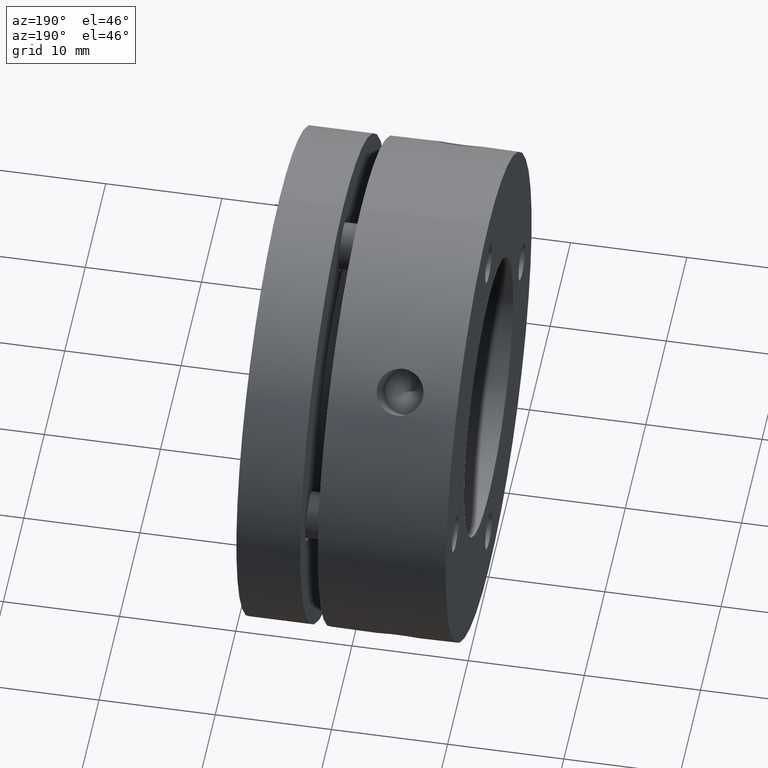
[diagram: clean part render]
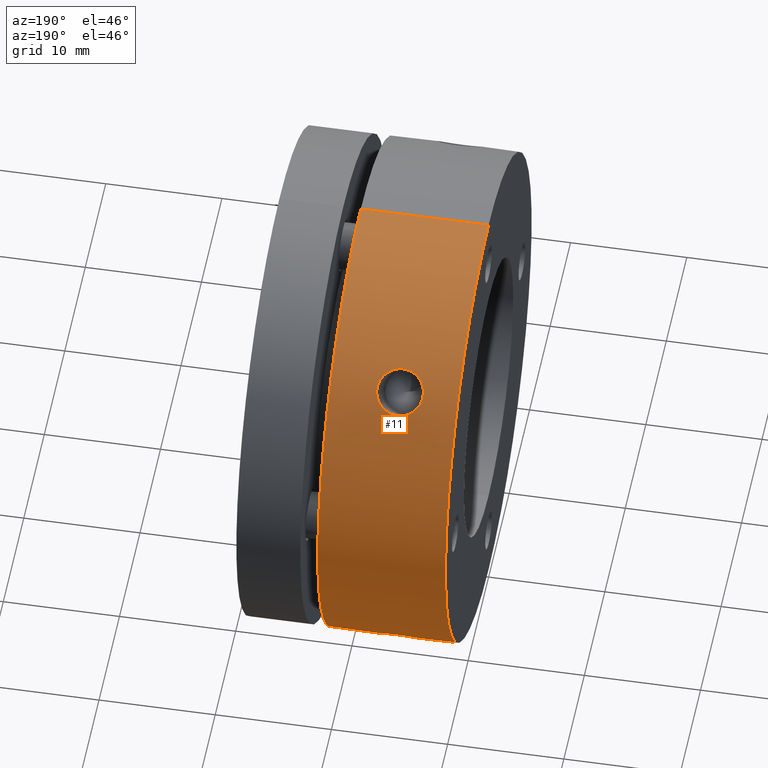
[diagram: same view with one face highlighted and labeled with its STEP entity id]
A machine part, auxiliary view. The second image highlights one B-rep face of the part: STEP entity #11.
In plain terms, the highlighted cylindrical surface (partial cylindrical patch) has radius 21 mm, axis along (1, 0, 0).
Its self-contained STEP definition (entity closure, byte-faithful):
#11 = ADVANCED_FACE ( 'NONE', ( #2265, #2268, #2271 ), #2275, .T. ) ;
#189 = LINE ( 'NONE', #3384, #190 ) ;
#190 = VECTOR ( 'NONE', #3383, 1000.000000000000000 ) ;
#217 = CIRCLE ( 'NONE', #1011, 20.99999999999999600 ) ;
#448 = AXIS2_PLACEMENT_3D ( 'NONE', #1272, #1223, #1276 ) ;
#529 = EDGE_LOOP ( 'NONE', ( #1470, #1476 ) ) ;
#535 = EDGE_LOOP ( 'NONE', ( #1589, #1568 ) ) ;
#574 = EDGE_LOOP ( 'NONE', ( #1612, #1520, #1575, #1566 ) ) ;
#914 = AXIS2_PLACEMENT_3D ( 'NONE', #2402, #2401, #2400 ) ;
#1011 = AXIS2_PLACEMENT_3D ( 'NONE', #3222, #3221, #3219 ) ;
#1093 = EDGE_CURVE ( 'NONE', #3028, #3022, #2710, .T. ) ;
#1094 = EDGE_CURVE ( 'NONE', #3028, #3007, #2708, .T. ) ;
#1095 = EDGE_CURVE ( 'NONE', #3015, #3006, #3527, .T. ) ;
#1096 = EDGE_CURVE ( 'NONE', #3001, #3032, #2479, .T. ) ;
#1223 = DIRECTION ( 'NONE',  ( 1.000000000000000000, 0.0000000000000000000, 0.0000000000000000000 ) ) ;
#1272 = CARTESIAN_POINT ( 'NONE',  ( 8.999999999999994700, 0.0000000000000000000, 0.0000000000000000000 ) ) ;
#1276 = DIRECTION ( 'NONE',  ( 0.0000000000000000000, 0.0000000000000000000, -1.000000000000000000 ) ) ;
#1470 = ORIENTED_EDGE ( 'NONE', *, *, #2986, .T. ) ;
#1476 = ORIENTED_EDGE ( 'NONE', *, *, #1095, .T. ) ;
#1520 = ORIENTED_EDGE ( 'NONE', *, *, #1969, .T. ) ;
#1566 = ORIENTED_EDGE ( 'NONE', *, *, #1093, .F. ) ;
#1568 = ORIENTED_EDGE ( 'NONE', *, *, #1964, .T. ) ;
#1575 = ORIENTED_EDGE ( 'NONE', *, *, #2987, .T. ) ;
#1589 = ORIENTED_EDGE ( 'NONE', *, *, #1096, .T. ) ;
#1612 = ORIENTED_EDGE ( 'NONE', *, *, #1094, .T. ) ;
#1871 = CARTESIAN_POINT ( 'NONE',  ( 6.005600143204897100, 16.03410691909888200, -13.56161555720591800 ) ) ;
#1872 = CARTESIAN_POINT ( 'NONE',  ( 3.013076156280496400, 14.66231486653603800, 15.03439262824929300 ) ) ;
#1874 = CARTESIAN_POINT ( 'NONE',  ( 3.013162436840886900, 15.03471700140199000, 14.66197906076251200 ) ) ;
#1875 = CARTESIAN_POINT ( 'NONE',  ( 4.113598743811387200, 13.52366510625741600, 16.06589607870441900 ) ) ;
#1876 = CARTESIAN_POINT ( 'NONE',  ( 6.986924496141181600, 14.66231830864906100, -15.03438927386135200 ) ) ;
#1877 = CARTESIAN_POINT ( 'NONE',  ( 6.589917304923512000, 15.68726099736142000, -13.96143524922093900 ) ) ;
#1878 = CARTESIAN_POINT ( 'NONE',  ( 6.935819717590558900, 15.21212407823497000, -14.47783223591921100 ) ) ;
#1879 = CARTESIAN_POINT ( 'NONE',  ( 3.064179134651903600, 15.21212116468766600, 14.47783529956555000 ) ) ;
#1880 = CARTESIAN_POINT ( 'NONE',  ( 3.064225063465916100, 14.47764516184384400, 15.21230520051250300 ) ) ;
#1881 = CARTESIAN_POINT ( 'NONE',  ( 4.736935662604039100, 13.37766463435834800, 16.18761098435290100 ) ) ;
#1882 = CARTESIAN_POINT ( 'NONE',  ( 6.986836918605400000, 15.03472032035416800, -14.66197565513485300 ) ) ;
#1886 = CARTESIAN_POINT ( 'NONE',  ( 6.999904746440447100, 14.94371491292546700, -14.75475706749604000 ) ) ;
#1887 = CARTESIAN_POINT ( 'NONE',  ( 6.735184434082400500, 15.54179043518068900, -14.12319304854436200 ) ) ;
#1888 = CARTESIAN_POINT ( 'NONE',  ( 4.999999999999995600, 16.19595906146757300, -13.36753193672138600 ) ) ;
#1890 = CARTESIAN_POINT ( 'NONE',  ( 4.355766056585326700, 13.44647644156576400, 16.13055504390197500 ) ) ;
#1891 = CARTESIAN_POINT ( 'NONE',  ( 4.869496860463496700, 13.36753193672138800, 16.19595906146757300 ) ) ;
#1896 = CARTESIAN_POINT ( 'NONE',  ( 5.261006279270014300, 16.19595906146758300, -13.36753193672139200 ) ) ;
#1898 = CARTESIAN_POINT ( 'NONE',  ( 5.524290909463321200, 16.16254283425133700, -13.40828886717223300 ) ) ;
#1899 = CARTESIAN_POINT ( 'NONE',  ( 6.796687258579057200, 15.46432699223289700, -14.20807017327674900 ) ) ;
#1900 = CARTESIAN_POINT ( 'NONE',  ( 4.738993284082493300, 16.19595906146758300, 13.36753193672138100 ) ) ;
#1901 = CARTESIAN_POINT ( 'NONE',  ( 6.505436171368358200, 15.75547316399062600, -13.88429291158902900 ) ) ;
#1902 = CARTESIAN_POINT ( 'NONE',  ( 4.480440816003436100, 13.41724441413780700, 16.15482010984314000 ) ) ;
#1903 = CARTESIAN_POINT ( 'NONE',  ( 3.102754687375309600, 15.29942260343310200, 14.38549044880101500 ) ) ;
#1904 = CARTESIAN_POINT ( 'NONE',  ( 3.679102153134181200, 13.74509068351628300, 15.87706641633236300 ) ) ;
#1907 = CARTESIAN_POINT ( 'NONE',  ( 3.102038272335075700, 14.38702237064529400, 15.29798268426135300 ) ) ;
#1908 = CARTESIAN_POINT ( 'NONE',  ( 3.494561936237607000, 15.75547175332747300, 13.88429451423871600 ) ) ;
#1909 = CARTESIAN_POINT ( 'NONE',  ( 3.492391630515911900, 13.88603379920389000, 15.75394621084133500 ) ) ;
#1910 = CARTESIAN_POINT ( 'NONE',  ( 3.264963416001619700, 14.12304419929171400, 15.54192321312433800 ) ) ;
#1911 = CARTESIAN_POINT ( 'NONE',  ( 6.228682739156715400, 15.93768389421788200, -13.67568386561014100 ) ) ;
#1914 = CARTESIAN_POINT ( 'NONE',  ( 3.996623524210593600, 13.57173985438823200, 16.02539085105004100 ) ) ;
#1915 = CARTESIAN_POINT ( 'NONE',  ( 6.897243942012831800, 15.29942532519429900, -14.38548755135753500 ) ) ;
#1916 = CARTESIAN_POINT ( 'NONE',  ( 3.000094899217838700, 14.94371138295777300, 14.75476064518892500 ) ) ;
#1917 = CARTESIAN_POINT ( 'NONE',  ( 3.264813809755703100, 15.54178840846869700, 14.12319528102776700 ) ) ;
#1918 = CARTESIAN_POINT ( 'NONE',  ( 3.409726555438127500, 13.96181605567385600, 15.68691961620661800 ) ) ;
#1920 = CARTESIAN_POINT ( 'NONE',  ( 4.999999999999995600, 13.36753193672139000, 16.19595906146756900 ) ) ;
#1921 = CARTESIAN_POINT ( 'NONE',  ( 3.771315489736668100, 15.93768305761307100, 13.67568484819504700 ) ) ;
#1923 = CARTESIAN_POINT ( 'NONE',  ( 3.994398311799901800, 16.03410638635383000, 13.56161618947426600 ) ) ;
#1925 = CARTESIAN_POINT ( 'NONE',  ( 4.475708219929767800, 16.16254272239968900, 13.40828900442290800 ) ) ;
#1930 = CARTESIAN_POINT ( 'NONE',  ( 4.999999999999995600, 16.19595906146758000, 13.36753193672138100 ) ) ;
#1931 = CARTESIAN_POINT ( 'NONE',  ( 3.780064835755626800, 13.68225841137524600, 15.93113553292607800 ) ) ;
#1933 = CARTESIAN_POINT ( 'NONE',  ( 3.410080805898212800, 15.68725937362157700, 13.96143707590228000 ) ) ;
#1935 = CARTESIAN_POINT ( 'NONE',  ( 3.202351140710812900, 14.20950283273895200, 15.46301122510722200 ) ) ;
#1936 = CARTESIAN_POINT ( 'NONE',  ( 7.000094226100891600, 14.75679710029061000, -14.94170040057255900 ) ) ;
#1937 = CARTESIAN_POINT ( 'NONE',  ( 3.203311083986759600, 15.46432474832443500, 14.20807261838653400 ) ) ;
#1938 = CARTESIAN_POINT ( 'NONE',  ( 2.999906120647179100, 14.75679312540696800, 14.94170432875377200 ) ) ;
#1964 = EDGE_CURVE ( 'NONE', #3032, #3001, #3518, .T. ) ;
#1969 = EDGE_CURVE ( 'NONE', #3007, #3029, #189, .T. ) ;
#2265 = FACE_BOUND ( 'NONE', #535, .T. ) ;
#2268 = FACE_BOUND ( 'NONE', #529, .T. ) ;
#2271 = FACE_OUTER_BOUND ( 'NONE', #574, .T. ) ;
#2275 = CYLINDRICAL_SURFACE ( 'NONE', #448, 20.99999999999999600 ) ;
#2382 = CARTESIAN_POINT ( 'NONE',  ( 6.935776082672465900, 14.47764821334974900, -15.21230229888407800 ) ) ;
#2383 = CARTESIAN_POINT ( 'NONE',  ( 6.897963072945525000, 14.38702523242153400, -15.29797999506994600 ) ) ;
#2384 = CARTESIAN_POINT ( 'NONE',  ( 6.797650537437917300, 14.20950532141517500, -15.46300894032489900 ) ) ;
#2385 = CARTESIAN_POINT ( 'NONE',  ( 6.735038349482926500, 14.12304644098453600, -15.54192117820698200 ) ) ;
#2386 = CARTESIAN_POINT ( 'NONE',  ( 6.590275315048937300, 13.96181786350604500, -15.68691800928684700 ) ) ;
#2388 = CARTESIAN_POINT ( 'NONE',  ( 6.507610298702568100, 13.88603543654059400, -15.75394476942905800 ) ) ;
#2389 = CARTESIAN_POINT ( 'NONE',  ( 6.320899669290756000, 13.74509187820524000, -15.87706538384152400 ) ) ;
#2391 = CARTESIAN_POINT ( 'NONE',  ( 6.219936903085043800, 13.68225941346796200, -15.93113467332037700 ) ) ;
#2392 = CARTESIAN_POINT ( 'NONE',  ( 6.003378000494636900, 13.57174051781518500, -16.02539029022372600 ) ) ;
#2394 = CARTESIAN_POINT ( 'NONE',  ( 5.886402651143085600, 13.52366562189674300, -16.06589564518466400 ) ) ;
#2395 = CARTESIAN_POINT ( 'NONE',  ( 5.644234981439873300, 13.44647670141763700, -16.13055482781259500 ) ) ;
#2398 = CARTESIAN_POINT ( 'NONE',  ( 5.519560030891916800, 13.41724457858807400, -16.15481997339498200 ) ) ;
#2399 = CARTESIAN_POINT ( 'NONE',  ( 4.999999999999995600, 13.36753193672138300, -16.19595906146757600 ) ) ;
#2400 = DIRECTION ( 'NONE',  ( 0.0000000000000000000, 0.0000000000000000000, -1.000000000000000000 ) ) ;
#2401 = DIRECTION ( 'NONE',  ( 1.000000000000000000, 0.0000000000000000000, 0.0000000000000000000 ) ) ;
#2402 = CARTESIAN_POINT ( 'NONE',  ( -5.204170427930421300E-015, 0.0000000000000000000, 0.0000000000000000000 ) ) ;
#2403 = CARTESIAN_POINT ( 'NONE',  ( 5.263064778962641000, 13.37766466873112100, -16.18761095608106300 ) ) ;
#2405 = CARTESIAN_POINT ( 'NONE',  ( 5.130503358057259400, 13.36753193672139000, -16.19595906146758000 ) ) ;
#2413 = DIRECTION ( 'NONE',  ( 1.000000000000000000, 0.0000000000000000000, 0.0000000000000000000 ) ) ;
#2414 = CARTESIAN_POINT ( 'NONE',  ( 8.999999999999994700, 0.0000000000000000000, -20.99999999999999600 ) ) ;
#2479 = B_SPLINE_CURVE_WITH_KNOTS ( 'NONE', 3,
 ( #1920, #1891, #1881, #1902, #1890, #1875, #1914, #1931, #1904, #1909, #1918, #1910, #1935, #1907, #1880, #1872, #1938, #1916, #1874, #1879, #1903, #1937, #1917, #1933, #1908, #1921, #1923, #1925, #1900, #1930 ),
 .UNSPECIFIED., .F., .F.,
 ( 4, 2, 2, 2, 2, 2, 2, 2, 2, 2, 2, 2, 2, 2, 4 ),
 ( 0.009384036544059738300, 0.009774979402180144700, 0.01016592226030054900, 0.01055686511842095600, 0.01094780797654136200, 0.01133875083466176800, 0.01172969369278217600, 0.01212063655090258500, 0.01251157940902299400, 0.01290252226714340100, 0.01329346512526381100, 0.01368440798338421900, 0.01407535084150462500, 0.01485723655774543600, 0.01563912227398624900 ),
 .UNSPECIFIED. ) ;
#2708 = CIRCLE ( 'NONE', #914, 20.99999999999999600 ) ;
#2710 = LINE ( 'NONE', #2414, #2712 ) ;
#2712 = VECTOR ( 'NONE', #2413, 1000.000000000000000 ) ;
#2986 = EDGE_CURVE ( 'NONE', #3006, #3015, #3525, .T. ) ;
#2987 = EDGE_CURVE ( 'NONE', #3029, #3022, #217, .T. ) ;
#3001 = VERTEX_POINT ( 'NONE', #3265 ) ;
#3006 = VERTEX_POINT ( 'NONE', #3216 ) ;
#3007 = VERTEX_POINT ( 'NONE', #3212 ) ;
#3015 = VERTEX_POINT ( 'NONE', #3217 ) ;
#3022 = VERTEX_POINT ( 'NONE', #3201 ) ;
#3028 = VERTEX_POINT ( 'NONE', #3185 ) ;
#3029 = VERTEX_POINT ( 'NONE', #3259 ) ;
#3032 = VERTEX_POINT ( 'NONE', #3165 ) ;
#3165 = CARTESIAN_POINT ( 'NONE',  ( 4.999999999999995600, 16.19595906146758000, 13.36753193672138100 ) ) ;
#3185 = CARTESIAN_POINT ( 'NONE',  ( -5.204170427930421300E-015, 0.0000000000000000000, -20.99999999999999600 ) ) ;
#3201 = CARTESIAN_POINT ( 'NONE',  ( 11.00000000000000000, 0.0000000000000000000, -20.99999999999999600 ) ) ;
#3212 = CARTESIAN_POINT ( 'NONE',  ( -5.204170427930421300E-015, 2.571758278209441300E-015, 20.99999999999999600 ) ) ;
#3216 = CARTESIAN_POINT ( 'NONE',  ( 4.999999999999995600, 16.19595906146757300, -13.36753193672138600 ) ) ;
#3217 = CARTESIAN_POINT ( 'NONE',  ( 4.999999999999995600, 13.36753193672138300, -16.19595906146757600 ) ) ;
#3219 = DIRECTION ( 'NONE',  ( 0.0000000000000000000, 0.0000000000000000000, -1.000000000000000000 ) ) ;
#3221 = DIRECTION ( 'NONE',  ( -1.000000000000000000, -0.0000000000000000000, -0.0000000000000000000 ) ) ;
#3222 = CARTESIAN_POINT ( 'NONE',  ( 11.00000000000000000, 0.0000000000000000000, 0.0000000000000000000 ) ) ;
#3228 = CARTESIAN_POINT ( 'NONE',  ( 4.999999999999995600, 13.36753193672138300, -16.19595906146757600 ) ) ;
#3229 = CARTESIAN_POINT ( 'NONE',  ( 4.738993284082491500, 13.36753193672138500, -16.19595906146758000 ) ) ;
#3230 = CARTESIAN_POINT ( 'NONE',  ( 4.475708219929766000, 13.40828900442290600, -16.16254272239968200 ) ) ;
#3231 = CARTESIAN_POINT ( 'NONE',  ( 3.994398311799897300, 13.56161618947426800, -16.03410638635382300 ) ) ;
#3232 = CARTESIAN_POINT ( 'NONE',  ( 3.771315489736665000, 13.67568484819504900, -15.93768305761306100 ) ) ;
#3233 = CARTESIAN_POINT ( 'NONE',  ( 3.494561936237606600, 13.88429451423872700, -15.75547175332747700 ) ) ;
#3234 = CARTESIAN_POINT ( 'NONE',  ( 3.410080805898208800, 13.96143707590228900, -15.68725937362157700 ) ) ;
#3235 = CARTESIAN_POINT ( 'NONE',  ( 3.264813809755701300, 14.12319528102778100, -15.54178840846869900 ) ) ;
#3236 = CARTESIAN_POINT ( 'NONE',  ( 3.203311083986756900, 14.20807261838654300, -15.46432474832443300 ) ) ;
#3237 = CARTESIAN_POINT ( 'NONE',  ( 3.102754687375307400, 14.38549044880102400, -15.29942260343309500 ) ) ;
#3238 = CARTESIAN_POINT ( 'NONE',  ( 3.064179134651901800, 14.47783529956555700, -15.21212116468765900 ) ) ;
#3239 = CARTESIAN_POINT ( 'NONE',  ( 3.013162436840886900, 14.66197906076252300, -15.03471700140198500 ) ) ;
#3241 = CARTESIAN_POINT ( 'NONE',  ( 3.000094899217838200, 14.75476064518892900, -14.94371138295776400 ) ) ;
#3242 = CARTESIAN_POINT ( 'NONE',  ( 2.999906120647180400, 14.94170432875378700, -14.75679312540696700 ) ) ;
#3243 = CARTESIAN_POINT ( 'NONE',  ( 3.013076156280497700, 15.03439262824928900, -14.66231486653602700 ) ) ;
#3244 = CARTESIAN_POINT ( 'NONE',  ( 3.064225063465916500, 15.21230520051250900, -14.47764516184383500 ) ) ;
#3245 = CARTESIAN_POINT ( 'NONE',  ( 3.102038272335076600, 15.29798268426135300, -14.38702237064528300 ) ) ;
#3246 = CARTESIAN_POINT ( 'NONE',  ( 3.202351140710814700, 15.46301122510722200, -14.20950283273894100 ) ) ;
#3248 = CARTESIAN_POINT ( 'NONE',  ( 3.264963416001621900, 15.54192321312434400, -14.12304419929170300 ) ) ;
#3249 = CARTESIAN_POINT ( 'NONE',  ( 3.409726555438130200, 15.68691961620662500, -13.96181605567385200 ) ) ;
#3250 = CARTESIAN_POINT ( 'NONE',  ( 3.492391630515916800, 15.75394621084135200, -13.88603379920389000 ) ) ;
#3251 = CARTESIAN_POINT ( 'NONE',  ( 3.679102153134184800, 15.87706641633236300, -13.74509068351627900 ) ) ;
#3252 = CARTESIAN_POINT ( 'NONE',  ( 3.780064835755632100, 15.93113553292608100, -13.68225841137524100 ) ) ;
#3253 = CARTESIAN_POINT ( 'NONE',  ( 3.996623524210598100, 16.02539085105004400, -13.57173985438823000 ) ) ;
#3254 = CARTESIAN_POINT ( 'NONE',  ( 4.113598743811389000, 16.06589607870441900, -13.52366510625740400 ) ) ;
#3255 = CARTESIAN_POINT ( 'NONE',  ( 4.355766056585328400, 16.13055504390197100, -13.44647644156575900 ) ) ;
#3257 = CARTESIAN_POINT ( 'NONE',  ( 4.480440816003437000, 16.15482010984314300, -13.41724441413780300 ) ) ;
#3258 = CARTESIAN_POINT ( 'NONE',  ( 4.736935662604040000, 16.18761098435290100, -13.37766463435834500 ) ) ;
#3259 = CARTESIAN_POINT ( 'NONE',  ( 11.00000000000000000, 2.571758278209441300E-015, 20.99999999999999600 ) ) ;
#3263 = CARTESIAN_POINT ( 'NONE',  ( 4.869496860463497600, 16.19595906146757600, -13.36753193672138500 ) ) ;
#3264 = CARTESIAN_POINT ( 'NONE',  ( 4.999999999999995600, 16.19595906146757300, -13.36753193672138600 ) ) ;
#3265 = CARTESIAN_POINT ( 'NONE',  ( 4.999999999999995600, 13.36753193672139000, 16.19595906146756900 ) ) ;
#3383 = DIRECTION ( 'NONE',  ( 1.000000000000000000, 0.0000000000000000000, 0.0000000000000000000 ) ) ;
#3384 = CARTESIAN_POINT ( 'NONE',  ( 8.999999999999994700, 2.571758278209441300E-015, 20.99999999999999600 ) ) ;
#3391 = CARTESIAN_POINT ( 'NONE',  ( 4.999999999999995600, 13.36753193672139000, 16.19595906146756900 ) ) ;
#3392 = CARTESIAN_POINT ( 'NONE',  ( 5.261006279270015200, 13.36753193672139000, 16.19595906146757300 ) ) ;
#3393 = CARTESIAN_POINT ( 'NONE',  ( 5.524290909463324800, 13.40828886717223900, 16.16254283425133700 ) ) ;
#3394 = CARTESIAN_POINT ( 'NONE',  ( 6.005600143204903300, 13.56161555720592600, 16.03410691909888200 ) ) ;
#3395 = CARTESIAN_POINT ( 'NONE',  ( 6.228682739156719900, 13.67568386561014800, 15.93768389421788200 ) ) ;
#3396 = CARTESIAN_POINT ( 'NONE',  ( 6.505436171368361700, 13.88429291158903600, 15.75547316399062900 ) ) ;
#3397 = CARTESIAN_POINT ( 'NONE',  ( 6.589917304923514700, 13.96143524922094600, 15.68726099736141700 ) ) ;
#3398 = CARTESIAN_POINT ( 'NONE',  ( 6.735184434082403200, 14.12319304854436700, 15.54179043518068300 ) ) ;
#3399 = CARTESIAN_POINT ( 'NONE',  ( 6.796687258579058100, 14.20807017327675900, 15.46432699223289100 ) ) ;
#3400 = CARTESIAN_POINT ( 'NONE',  ( 6.897243942012831800, 14.38548755135754000, 15.29942532519428900 ) ) ;
#3401 = CARTESIAN_POINT ( 'NONE',  ( 6.935819717590559800, 14.47783223591921400, 15.21212407823495700 ) ) ;
#3402 = CARTESIAN_POINT ( 'NONE',  ( 6.986836918605400000, 14.66197565513485800, 15.03472032035416100 ) ) ;
#3403 = CARTESIAN_POINT ( 'NONE',  ( 6.999904746440447100, 14.75475706749604600, 14.94371491292546000 ) ) ;
#3404 = CARTESIAN_POINT ( 'NONE',  ( 7.000094226100889800, 14.94170040057256600, 14.75679710029060300 ) ) ;
#3405 = CARTESIAN_POINT ( 'NONE',  ( 6.986924496141180700, 15.03438927386136100, 14.66231830864904900 ) ) ;
#3406 = CARTESIAN_POINT ( 'NONE',  ( 6.935776082672463300, 15.21230229888407800, 14.47764821334973300 ) ) ;
#3407 = CARTESIAN_POINT ( 'NONE',  ( 6.897963072945521500, 15.29797999506994600, 14.38702523242152700 ) ) ;
#3408 = CARTESIAN_POINT ( 'NONE',  ( 6.797650537437917300, 15.46300894032490600, 14.20950532141517000 ) ) ;
#3409 = CARTESIAN_POINT ( 'NONE',  ( 6.735038349482920200, 15.54192117820698900, 14.12304644098452900 ) ) ;
#3410 = CARTESIAN_POINT ( 'NONE',  ( 6.590275315048936400, 15.68691800928686100, 13.96181786350604200 ) ) ;
#3411 = CARTESIAN_POINT ( 'NONE',  ( 6.507610298702565500, 15.75394476942906500, 13.88603543654058800 ) ) ;
#3412 = CARTESIAN_POINT ( 'NONE',  ( 6.320899669290753300, 15.87706538384152000, 13.74509187820523300 ) ) ;
#3413 = CARTESIAN_POINT ( 'NONE',  ( 6.219936903085039300, 15.93113467332038100, 13.68225941346795000 ) ) ;
#3414 = CARTESIAN_POINT ( 'NONE',  ( 6.003378000494630700, 16.02539029022372900, 13.57174051781517900 ) ) ;
#3415 = CARTESIAN_POINT ( 'NONE',  ( 5.886402651143080300, 16.06589564518467100, 13.52366562189673400 ) ) ;
#3416 = CARTESIAN_POINT ( 'NONE',  ( 5.644234981439871600, 16.13055482781259500, 13.44647670141763000 ) ) ;
#3417 = CARTESIAN_POINT ( 'NONE',  ( 5.519560030891915000, 16.15481997339497900, 13.41724457858806700 ) ) ;
#3418 = CARTESIAN_POINT ( 'NONE',  ( 5.263064778962640100, 16.18761095608106300, 13.37766466873111800 ) ) ;
#3419 = CARTESIAN_POINT ( 'NONE',  ( 5.130503358057259400, 16.19595906146758300, 13.36753193672138300 ) ) ;
#3420 = CARTESIAN_POINT ( 'NONE',  ( 4.999999999999995600, 16.19595906146758000, 13.36753193672138100 ) ) ;
#3518 = B_SPLINE_CURVE_WITH_KNOTS ( 'NONE', 3,
 ( #3420, #3419, #3418, #3417, #3416, #3415, #3414, #3413, #3412, #3411, #3410, #3409, #3408, #3407, #3406, #3405, #3404, #3403, #3402, #3401, #3400, #3399, #3398, #3397, #3396, #3395, #3394, #3393, #3392, #3391 ),
 .UNSPECIFIED., .F., .F.,
 ( 4, 2, 2, 2, 2, 2, 2, 2, 2, 2, 2, 2, 2, 2, 4 ),
 ( 0.003128950809411537900, 0.003519893667827050200, 0.003910836526242562500, 0.004301779384658074900, 0.004692722243073587200, 0.005083665101489099500, 0.005474607959904609200, 0.005865550818320118900, 0.006256493676735628600, 0.006647436535151138300, 0.007038379393566648000, 0.007429322251982156900, 0.007820265110397670000, 0.008602150827228705100, 0.009384036544059738300 ),
 .UNSPECIFIED. ) ;
#3525 = B_SPLINE_CURVE_WITH_KNOTS ( 'NONE', 3,
 ( #3264, #3263, #3258, #3257, #3255, #3254, #3253, #3252, #3251, #3250, #3249, #3248, #3246, #3245, #3244, #3243, #3242, #3241, #3239, #3238, #3237, #3236, #3235, #3234, #3233, #3232, #3231, #3230, #3229, #3228 ),
 .UNSPECIFIED., .F., .F.,
 ( 4, 2, 2, 2, 2, 2, 2, 2, 2, 2, 2, 2, 2, 2, 4 ),
 ( 0.009384036544059748800, 0.009774979402180158600, 0.01016592226030057000, 0.01055686511842098000, 0.01094780797654139000, 0.01133875083466180000, 0.01172969369278220600, 0.01212063655090261400, 0.01251157940902302000, 0.01290252226714342700, 0.01329346512526383300, 0.01368440798338423900, 0.01407535084150464600, 0.01485723655774546000, 0.01563912227398627300 ),
 .UNSPECIFIED. ) ;
#3527 = B_SPLINE_CURVE_WITH_KNOTS ( 'NONE', 3,
 ( #2399, #2405, #2403, #2398, #2395, #2394, #2392, #2391, #2389, #2388, #2386, #2385, #2384, #2383, #2382, #1876, #1936, #1886, #1882, #1878, #1915, #1899, #1887, #1877, #1901, #1911, #1871, #1898, #1896, #1888 ),
 .UNSPECIFIED., .F., .F.,
 ( 4, 2, 2, 2, 2, 2, 2, 2, 2, 2, 2, 2, 2, 2, 4 ),
 ( 0.003128950809411537100, 0.003519893667827049400, 0.003910836526242561700, 0.004301779384658074000, 0.004692722243073586300, 0.005083665101489099500, 0.005474607959904611800, 0.005865550818320123200, 0.006256493676735636400, 0.006647436535151148700, 0.007038379393566661000, 0.007429322251982172500, 0.007820265110397685600, 0.008602150827228715500, 0.009384036544059748800 ),
 .UNSPECIFIED. ) ;